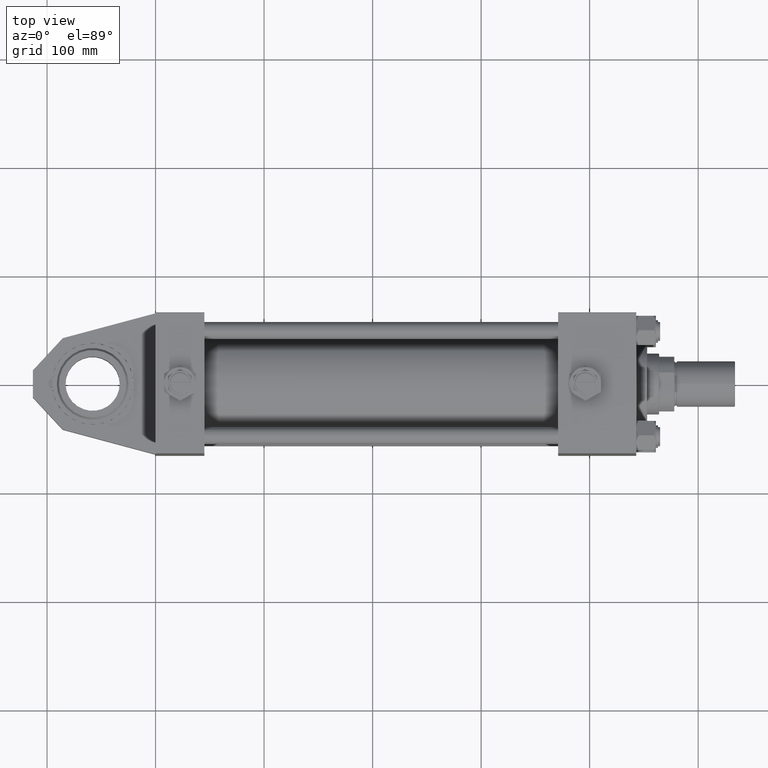
[diagram: clean part render]
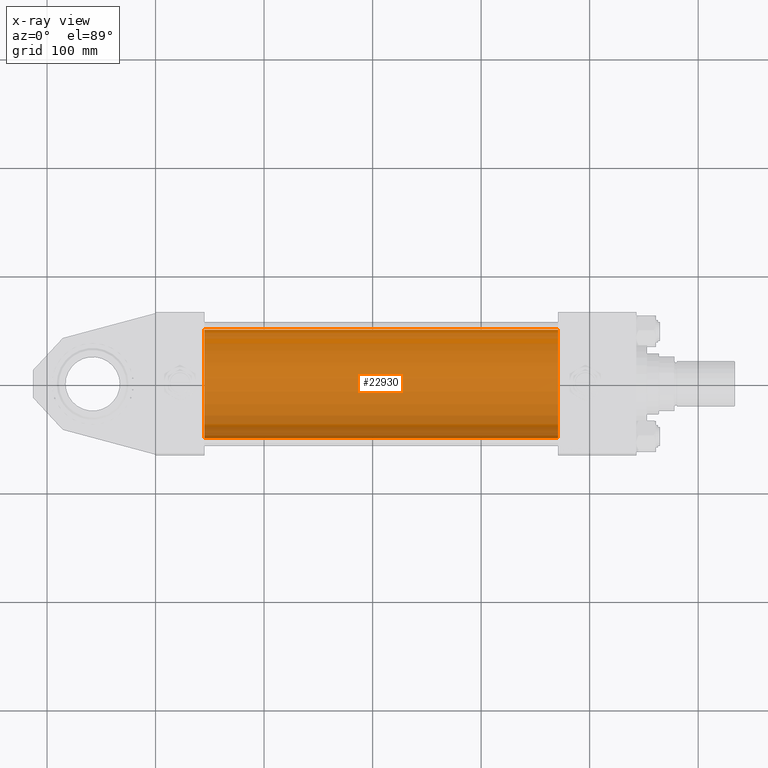
[diagram: x-ray — body ghosted, one internal face saturated and labeled with its STEP entity id]
A machine part, top view, then the same camera in x-ray: the body is ghosted and one INTERNAL B-rep face — a face not visible from any outside direction — is saturated and labeled: STEP entity #22930.
In plain terms, the highlighted cylindrical surface (partial cylindrical patch) has radius 50 mm, axis along (-1, 0, -0).
Its self-contained STEP definition (entity closure, byte-faithful):
#3059 = CARTESIAN_POINT ( 'NONE',  ( 45.00000000000000000, -2.602085213965210642E-15, 50.00000000000000000 ) ) ;
#3838 = AXIS2_PLACEMENT_3D ( 'NONE', #4371, #40951, #20212 ) ;
#4371 = CARTESIAN_POINT ( 'NONE',  ( 45.00000000000000000, -2.602085213965210642E-15, 0.000000000000000000 ) ) ;
#9271 = LINE ( 'NONE', #46659, #35818 ) ;
#10428 = EDGE_CURVE ( 'NONE', #43246, #31870, #9271, .T. ) ;
#13186 = CYLINDRICAL_SURFACE ( 'NONE', #39580, 50.00000000000000000 ) ;
#15861 = ORIENTED_EDGE ( 'NONE', *, *, #10428, .T. ) ;
#17586 = DIRECTION ( 'NONE',  ( -1.000000000000000000, -0.000000000000000000, -0.000000000000000000 ) ) ;
#17755 = CARTESIAN_POINT ( 'NONE',  ( 371.0000000000000000, -2.602085213965210642E-15, 0.000000000000000000 ) ) ;
#17994 = DIRECTION ( 'NONE',  ( 0.000000000000000000, 0.000000000000000000, 1.000000000000000000 ) ) ;
#20212 = DIRECTION ( 'NONE',  ( 0.000000000000000000, 0.000000000000000000, -1.000000000000000000 ) ) ;
#20969 = DIRECTION ( 'NONE',  ( -1.000000000000000000, -0.000000000000000000, -0.000000000000000000 ) ) ;
#21273 = DIRECTION ( 'NONE',  ( 1.000000000000000000, 0.000000000000000000, 0.000000000000000000 ) ) ;
#21771 = FACE_OUTER_BOUND ( 'NONE', #27908, .T. ) ;
#22930 = ADVANCED_FACE ( 'NONE', ( #21771 ), #13186, .F. ) ;
#23958 = ORIENTED_EDGE ( 'NONE', *, *, #52486, .F. ) ;
#25293 = CIRCLE ( 'NONE', #3838, 50.00000000000000000 ) ;
#25551 = DIRECTION ( 'NONE',  ( -1.000000000000000000, -0.000000000000000000, -0.000000000000000000 ) ) ;
#25695 = EDGE_CURVE ( 'NONE', #35740, #42180, #46011, .T. ) ;
#27367 = CIRCLE ( 'NONE', #53133, 50.00000000000000000 ) ;
#27908 = EDGE_LOOP ( 'NONE', ( #31806, #15861, #23958, #36235 ) ) ;
#29628 = DIRECTION ( 'NONE',  ( 0.000000000000000000, 0.000000000000000000, -1.000000000000000000 ) ) ;
#31071 = EDGE_CURVE ( 'NONE', #35740, #43246, #27367, .T. ) ;
#31806 = ORIENTED_EDGE ( 'NONE', *, *, #31071, .T. ) ;
#31870 = VERTEX_POINT ( 'NONE', #46375 ) ;
#35740 = VERTEX_POINT ( 'NONE', #44944 ) ;
#35818 = VECTOR ( 'NONE', #17586, 1000.000000000000000 ) ;
#36235 = ORIENTED_EDGE ( 'NONE', *, *, #25695, .F. ) ;
#38472 = CARTESIAN_POINT ( 'NONE',  ( 371.0000000000000000, -2.602085213965210642E-15, 0.000000000000000000 ) ) ;
#39580 = AXIS2_PLACEMENT_3D ( 'NONE', #38472, #25551, #17994 ) ;
#40951 = DIRECTION ( 'NONE',  ( 1.000000000000000000, 0.000000000000000000, 0.000000000000000000 ) ) ;
#42180 = VERTEX_POINT ( 'NONE', #3059 ) ;
#43246 = VERTEX_POINT ( 'NONE', #49561 ) ;
#44944 = CARTESIAN_POINT ( 'NONE',  ( 371.0000000000000000, -2.602085213965210642E-15, 50.00000000000000000 ) ) ;
#46011 = LINE ( 'NONE', #49773, #51740 ) ;
#46375 = CARTESIAN_POINT ( 'NONE',  ( 45.00000000000000000, 3.521148781771555838E-15, -50.00000000000000000 ) ) ;
#46659 = CARTESIAN_POINT ( 'NONE',  ( 371.0000000000000000, 3.521148781771555838E-15, -50.00000000000000000 ) ) ;
#49561 = CARTESIAN_POINT ( 'NONE',  ( 371.0000000000000000, 3.521148781771555838E-15, -50.00000000000000000 ) ) ;
#49773 = CARTESIAN_POINT ( 'NONE',  ( 371.0000000000000000, -2.602085213965210642E-15, 50.00000000000000000 ) ) ;
#51740 = VECTOR ( 'NONE', #20969, 1000.000000000000000 ) ;
#52486 = EDGE_CURVE ( 'NONE', #42180, #31870, #25293, .T. ) ;
#53133 = AXIS2_PLACEMENT_3D ( 'NONE', #17755, #21273, #29628 ) ;